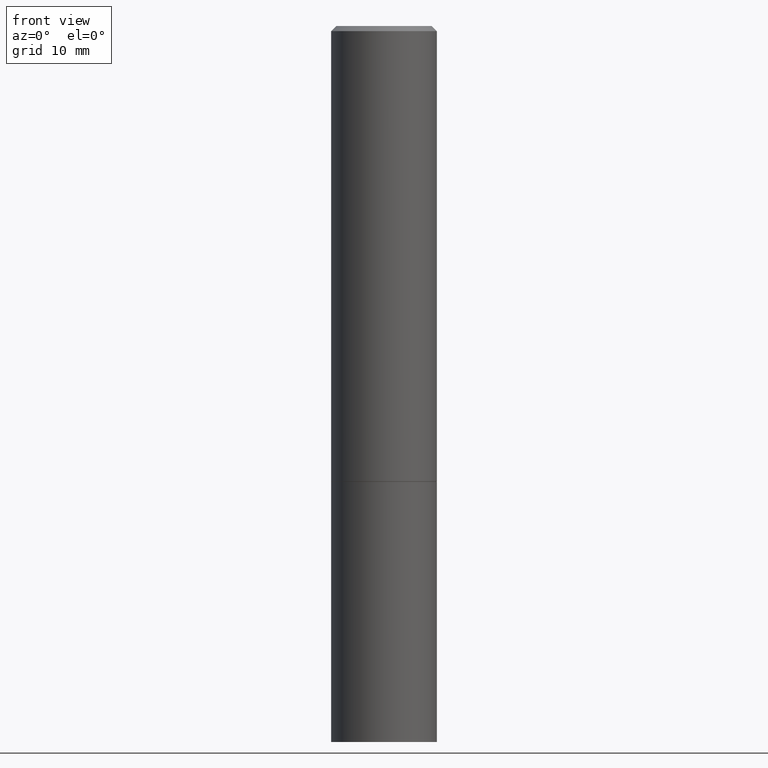
[diagram: clean part render]
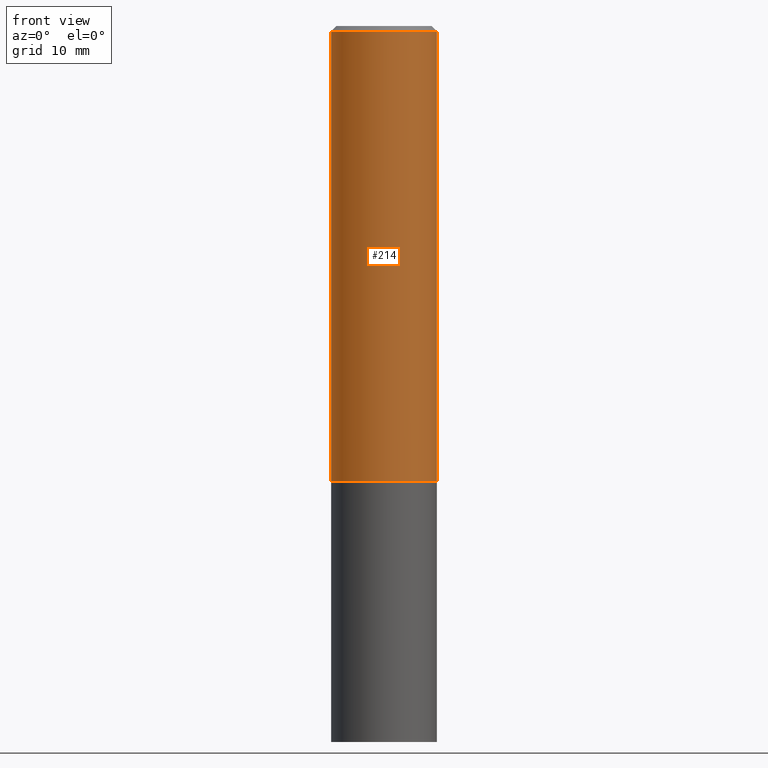
[diagram: same view with one face highlighted and labeled with its STEP entity id]
A machine part, front view. The second image highlights one B-rep face of the part: STEP entity #214.
In plain terms, the highlighted cylindrical surface (partial cylindrical patch) has radius 5.1587 mm, axis along (-0, 0, 1).
Its self-contained STEP definition (entity closure, byte-faithful):
#4 = CARTESIAN_POINT ( 'NONE',  ( 0.2030999999999999472, -1.418239719838080381E-15, 9.903515031641543342E-30 ) ) ;
#7 = CARTESIAN_POINT ( 'NONE',  ( -0.2030999999999998362, 1.348410093061216491E-15, -0.02000000000000004552 ) ) ;
#8 = DIRECTION ( 'NONE',  ( 1.000000000000000000, -6.982962677686264344E-15, 0.000000000000000000 ) ) ;
#24 = ORIENTED_EDGE ( 'NONE', *, *, #192, .T. ) ;
#29 = VERTEX_POINT ( 'NONE', #120 ) ;
#41 = CARTESIAN_POINT ( 'NONE',  ( 0.000000000000000000, 0.000000000000000000, 0.000000000000000000 ) ) ;
#44 = AXIS2_PLACEMENT_3D ( 'NONE', #41, #338, #303 ) ;
#64 = DIRECTION ( 'NONE',  ( 1.000000000000000000, -6.982962677686266711E-15, 0.000000000000000000 ) ) ;
#77 = AXIS2_PLACEMENT_3D ( 'NONE', #336, #154, #64 ) ;
#92 = VERTEX_POINT ( 'NONE', #7 ) ;
#98 = CYLINDRICAL_SURFACE ( 'NONE', #44, 0.2030999999999999472 ) ;
#99 = CARTESIAN_POINT ( 'NONE',  ( -0.2030999999999999472, 1.443112296328763103E-15, -9.990357168307711400E-30 ) ) ;
#104 = EDGE_CURVE ( 'NONE', #29, #92, #275, .T. ) ;
#114 = VECTOR ( 'NONE', #212, 39.37007874015748143 ) ;
#120 = CARTESIAN_POINT ( 'NONE',  ( -0.2031000000000000583, -1.645102947877997012E-15, -1.748999999999999888 ) ) ;
#141 = EDGE_LOOP ( 'NONE', ( #237, #263, #24, #206 ) ) ;
#154 = DIRECTION ( 'NONE',  ( -2.445468806185136597E-29, 3.491481338843145583E-15, 1.000000000000000000 ) ) ;
#162 = DIRECTION ( 'NONE',  ( -2.445468806185136597E-29, 3.491481338843145583E-15, 1.000000000000000000 ) ) ;
#185 = EDGE_CURVE ( 'NONE', #92, #201, #274, .T. ) ;
#186 = DIRECTION ( 'NONE',  ( -2.445468806185136877E-29, 3.491481338843145188E-15, 1.000000000000000000 ) ) ;
#189 = CIRCLE ( 'NONE', #209, 0.2031000000000000028 ) ;
#192 = EDGE_CURVE ( 'NONE', #348, #201, #273, .T. ) ;
#196 = VECTOR ( 'NONE', #186, 39.37007874015748143 ) ;
#201 = VERTEX_POINT ( 'NONE', #271 ) ;
#206 = ORIENTED_EDGE ( 'NONE', *, *, #185, .F. ) ;
#209 = AXIS2_PLACEMENT_3D ( 'NONE', #256, #162, #8 ) ;
#212 = DIRECTION ( 'NONE',  ( -2.445468806185136877E-29, 3.491481338843145188E-15, 1.000000000000000000 ) ) ;
#214 = ADVANCED_FACE ( 'NONE', ( #369 ), #98, .T. ) ;
#237 = ORIENTED_EDGE ( 'NONE', *, *, #104, .F. ) ;
#256 = CARTESIAN_POINT ( 'NONE',  ( 4.277124942017804002E-29, -6.106600861636660875E-15, -1.748999999999999888 ) ) ;
#263 = ORIENTED_EDGE ( 'NONE', *, *, #355, .T. ) ;
#271 = CARTESIAN_POINT ( 'NONE',  ( 0.2030999999999998362, -1.463196770124260168E-15, -0.02000000000000004552 ) ) ;
#273 = LINE ( 'NONE', #4, #114 ) ;
#274 = CIRCLE ( 'NONE', #77, 0.2030999999999998362 ) ;
#275 = LINE ( 'NONE', #99, #196 ) ;
#303 = DIRECTION ( 'NONE',  ( 1.000000000000000000, -6.982962677686266711E-15, 4.876176775795935793E-29 ) ) ;
#336 = CARTESIAN_POINT ( 'NONE',  ( 4.890937612370284544E-31, -6.982962677686307633E-17, -0.02000000000000004552 ) ) ;
#338 = DIRECTION ( 'NONE',  ( -2.445468806185136597E-29, 3.491481338843145583E-15, 1.000000000000000000 ) ) ;
#348 = VERTEX_POINT ( 'NONE', #374 ) ;
#355 = EDGE_CURVE ( 'NONE', #29, #348, #189, .T. ) ;
#369 = FACE_OUTER_BOUND ( 'NONE', #141, .T. ) ;
#374 = CARTESIAN_POINT ( 'NONE',  ( 0.2031000000000000028, -7.524840581474740861E-15, -1.748999999999999888 ) ) ;